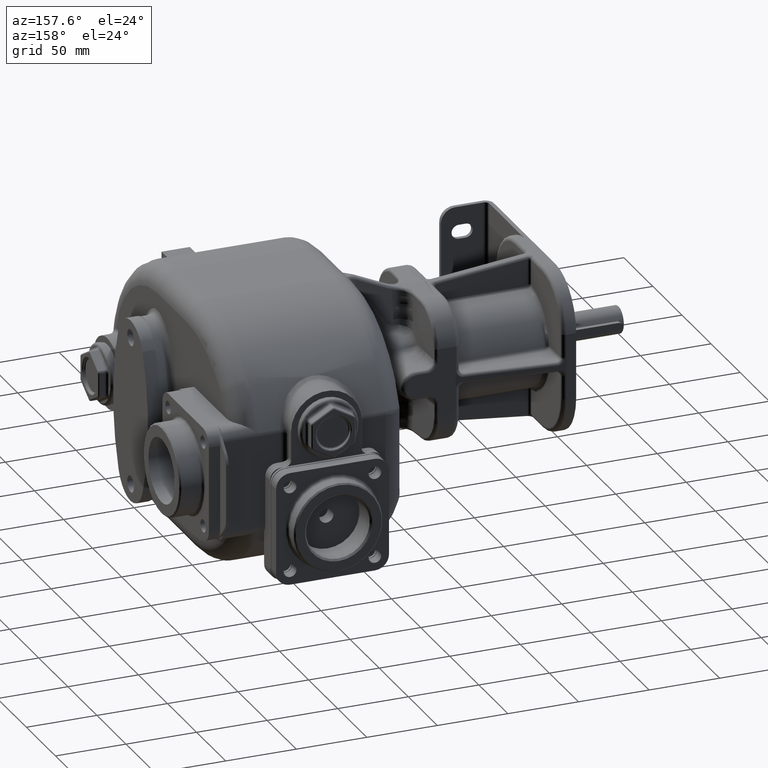
[diagram: clean part render]
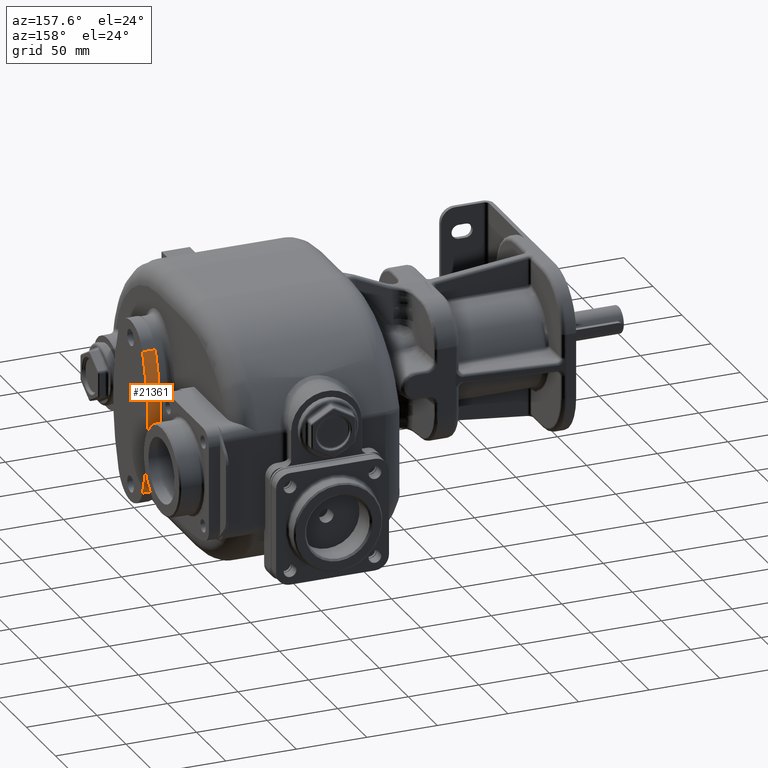
[diagram: same view with one face highlighted and labeled with its STEP entity id]
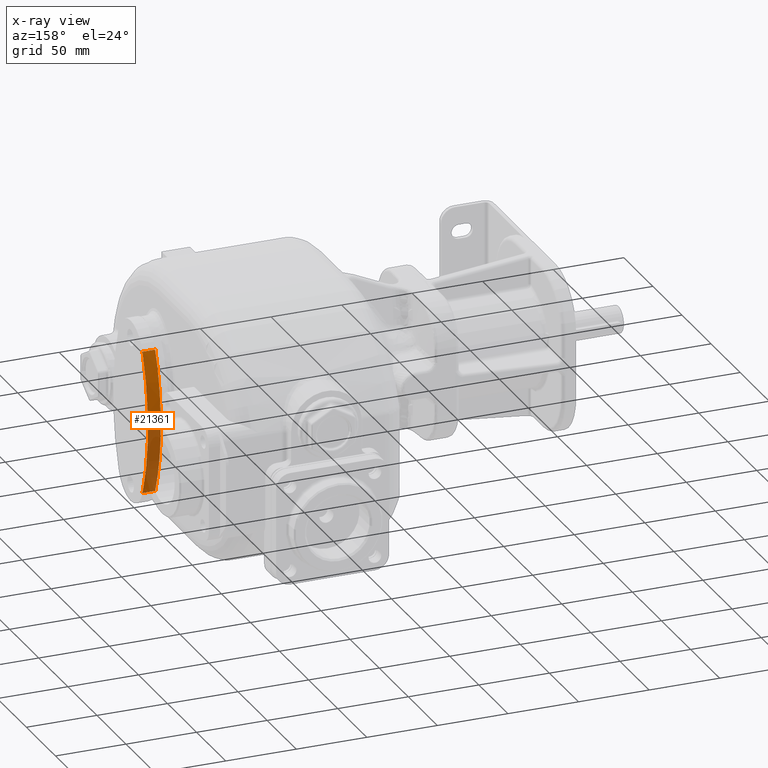
[diagram: x-ray of the same camera — body ghosted, the highlighted face saturated]
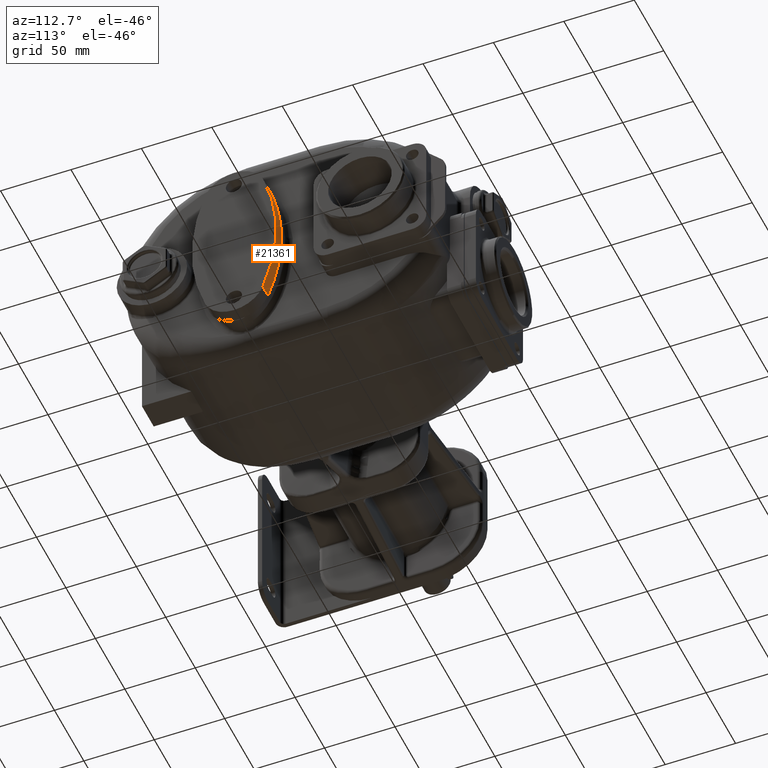
[diagram: same view with one face highlighted and labeled with its STEP entity id]
A machine part, auxiliary view. The second image highlights one B-rep face of the part: STEP entity #21361.
The next image is the same camera in x-ray: the body ghosted, the highlighted face saturated — about 41% of this face is hidden behind the body in this view.
A second angle (auxiliary view) of the same face is appended — the face is thin or edge-on in the first view.
In plain terms, the highlighted cylindrical surface (partial cylindrical patch) has radius 140 mm, axis along (1, 0, 0).
Its self-contained STEP definition (entity closure, byte-faithful):
#3511=DIRECTION('',(9.999999452097E-1,-8.917989787702E-6,3.309093892199E-4));
#3512=VECTOR('',#3511,9.000000493113E0);
#3513=CARTESIAN_POINT('',(6.E1,1.105136890134E2,4.366744742992E1));
#3514=LINE('',#3513,#3512);
#3519=DIRECTION('',(9.999999592701E-1,-8.917989905197E-6,2.852723830172E-4));
#3520=VECTOR('',#3519,9.000000366569E0);
#3521=CARTESIAN_POINT('',(6.E1,1.105136890134E2,-5.764744742992E1));
#3522=LINE('',#3521,#3520);
#3537=CARTESIAN_POINT('',(6.9E1,-2.E1,-6.99E0));
#3538=DIRECTION('',(1.E0,0.E0,0.E0));
#3539=DIRECTION('',(0.E0,9.322496398259E-1,-3.618157114394E-1));
#3540=AXIS2_PLACEMENT_3D('',#3537,#3538,#3539);
#3664=CARTESIAN_POINT('',(6.E1,-2.E1,-6.99E0));
#3665=DIRECTION('',(1.E0,0.E0,0.E0));
#3666=DIRECTION('',(0.E0,9.322406358099E-1,-3.618389102137E-1));
#3667=AXIS2_PLACEMENT_3D('',#3664,#3665,#3666);
#3669=CARTESIAN_POINT('',(6.E1,-2.E1,-6.99E0));
#3670=DIRECTION('',(1.E0,0.E0,0.E0));
#3671=DIRECTION('',(0.E0,9.959224837428E-1,-9.021311642758E-2));
#3672=AXIS2_PLACEMENT_3D('',#3669,#3670,#3671);
#3728=CARTESIAN_POINT('',(6.E1,-2.E1,-6.99E0));
#3729=DIRECTION('',(1.E0,0.E0,0.E0));
#3730=DIRECTION('',(0.E0,9.980007640519E-1,6.320185876879E-2));
#3731=AXIS2_PLACEMENT_3D('',#3728,#3729,#3730);
#15072=CARTESIAN_POINT('',(6.E1,1.194291477240E2,-1.961983629986E1));
#15073=CARTESIAN_POINT('',(6.E1,1.197201069673E2,1.858260227555E0));
#15074=VERTEX_POINT('',#15072);
#15075=VERTEX_POINT('',#15073);
#15094=CARTESIAN_POINT('',(6.E1,1.105136890134E2,-5.764744742992E1));
#15095=VERTEX_POINT('',#15094);
#15096=CARTESIAN_POINT('',(6.E1,1.105136890134E2,4.366744742992E1));
#15097=VERTEX_POINT('',#15096);
#15104=CARTESIAN_POINT('',(6.9E1,1.105149495042E2,-5.764419914294E1));
#15105=VERTEX_POINT('',#15104);
#15106=CARTESIAN_POINT('',(6.9E1,1.105093372234E2,4.367865794060E1));
#15107=VERTEX_POINT('',#15106);
#21343=CARTESIAN_POINT('',(6.E1,-2.E1,-6.99E0));
#21344=DIRECTION('',(1.E0,0.E0,0.E0));
#21345=DIRECTION('',(0.E0,0.E0,1.E0));
#21346=AXIS2_PLACEMENT_3D('',#21343,#21344,#21345);
#21347=CYLINDRICAL_SURFACE('',#21346,1.4E2);
#21349=ORIENTED_EDGE('',*,*,#21348,.T.);
#21351=ORIENTED_EDGE('',*,*,#21350,.T.);
#21352=ORIENTED_EDGE('',*,*,#21329,.F.);
#21354=ORIENTED_EDGE('',*,*,#21353,.F.);
#21356=ORIENTED_EDGE('',*,*,#21355,.F.);
#21358=ORIENTED_EDGE('',*,*,#21357,.F.);
#21359=EDGE_LOOP('',(#21349,#21351,#21352,#21354,#21356,#21358));
#21360=FACE_OUTER_BOUND('',#21359,.F.);
#21361=ADVANCED_FACE('',(#21360),#21347,.T.);
#3541=CIRCLE('',#3540,1.4E2);
#3668=CIRCLE('',#3667,1.4E2);
#3673=CIRCLE('',#3672,1.4E2);
#3732=CIRCLE('',#3731,1.4E2);
#21329=EDGE_CURVE('',#15097,#15107,#3514,.T.);
#21348=EDGE_CURVE('',#15095,#15105,#3522,.T.);
#21350=EDGE_CURVE('',#15105,#15107,#3541,.T.);
#21353=EDGE_CURVE('',#15075,#15097,#3732,.T.);
#21355=EDGE_CURVE('',#15074,#15075,#3673,.T.);
#21357=EDGE_CURVE('',#15095,#15074,#3668,.T.);